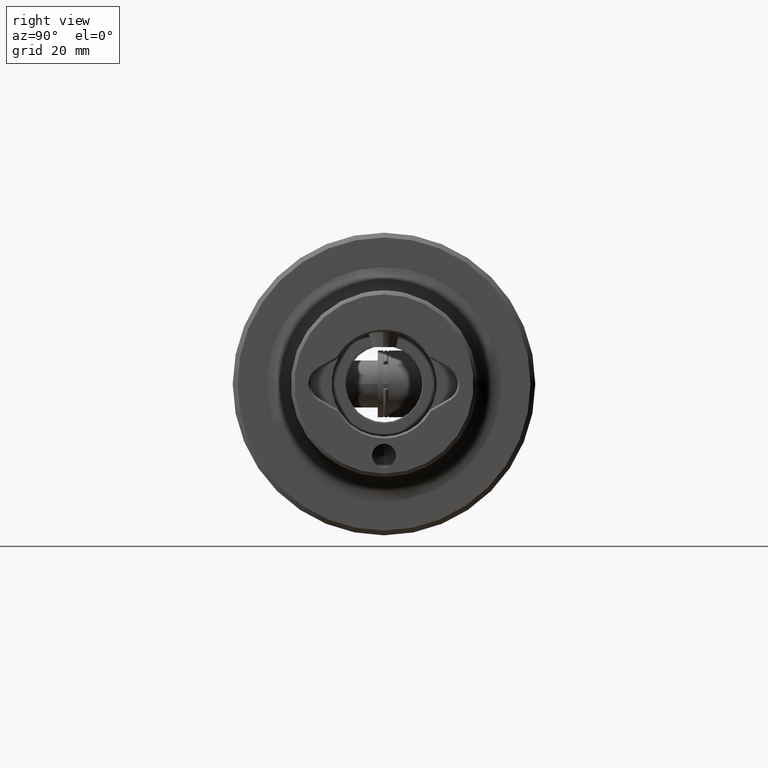
[diagram: clean part render]
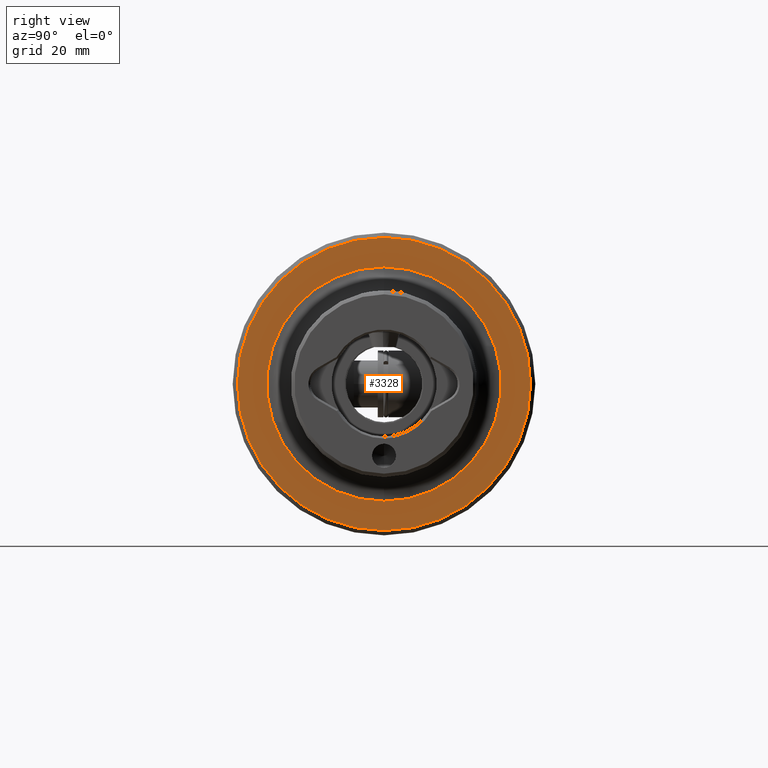
[diagram: same view with one face highlighted and labeled with its STEP entity id]
A machine part, right view. The second image highlights one B-rep face of the part: STEP entity #3328.
In plain terms, the highlighted planar face has unit normal (-1, 0, 0).
Its self-contained STEP definition (entity closure, byte-faithful):
#12 = CIRCLE ( 'NONE', #2469, 30.63500000000000200 ) ;
#118 = DIRECTION ( 'NONE',  ( 0.0000000000000000000, 0.0000000000000000000, 1.000000000000000000 ) ) ;
#158 = CARTESIAN_POINT ( 'NONE',  ( 52.00000000000000700, 3.000384657911015500E-015, -24.50000000000000000 ) ) ;
#193 = DIRECTION ( 'NONE',  ( 0.0000000000000000000, 0.0000000000000000000, 1.000000000000000000 ) ) ;
#304 = EDGE_LOOP ( 'NONE', ( #628, #2915 ) ) ;
#317 = PLANE ( 'NONE',  #3670 ) ;
#386 = AXIS2_PLACEMENT_3D ( 'NONE', #5094, #2635, #193 ) ;
#504 = ORIENTED_EDGE ( 'NONE', *, *, #2127, .T. ) ;
#544 = ORIENTED_EDGE ( 'NONE', *, *, #2341, .T. ) ;
#628 = ORIENTED_EDGE ( 'NONE', *, *, #3543, .T. ) ;
#858 = CARTESIAN_POINT ( 'NONE',  ( 52.00000000000000700, 0.0000000000000000000, 0.0000000000000000000 ) ) ;
#1260 = DIRECTION ( 'NONE',  ( 0.0000000000000000000, 0.0000000000000000000, 1.000000000000000000 ) ) ;
#1381 = CARTESIAN_POINT ( 'NONE',  ( 52.00000000000000700, 0.0000000000000000000, 0.0000000000000000000 ) ) ;
#1545 = CARTESIAN_POINT ( 'NONE',  ( 52.00000000000000700, 31.63500000000000500, 0.0000000000000000000 ) ) ;
#1727 = FACE_BOUND ( 'NONE', #2852, .T. ) ;
#1782 = DIRECTION ( 'NONE',  ( 0.0000000000000000000, 0.0000000000000000000, 1.000000000000000000 ) ) ;
#2015 = VERTEX_POINT ( 'NONE', #3285 ) ;
#2127 = EDGE_CURVE ( 'NONE', #3059, #2219, #4745, .T. ) ;
#2219 = VERTEX_POINT ( 'NONE', #5242 ) ;
#2341 = EDGE_CURVE ( 'NONE', #2219, #3059, #3160, .T. ) ;
#2372 = DIRECTION ( 'NONE',  ( -0.0000000000000000000, 0.0000000000000000000, 1.000000000000000000 ) ) ;
#2469 = AXIS2_PLACEMENT_3D ( 'NONE', #5011, #2551, #118 ) ;
#2551 = DIRECTION ( 'NONE',  ( 1.000000000000000000, 0.0000000000000000000, 0.0000000000000000000 ) ) ;
#2635 = DIRECTION ( 'NONE',  ( 1.000000000000000000, 0.0000000000000000000, 0.0000000000000000000 ) ) ;
#2852 = EDGE_LOOP ( 'NONE', ( #544, #504 ) ) ;
#2915 = ORIENTED_EDGE ( 'NONE', *, *, #3135, .T. ) ;
#3059 = VERTEX_POINT ( 'NONE', #158 ) ;
#3135 = EDGE_CURVE ( 'NONE', #5030, #2015, #4670, .T. ) ;
#3160 = CIRCLE ( 'NONE', #3165, 24.50000000000000000 ) ;
#3165 = AXIS2_PLACEMENT_3D ( 'NONE', #858, #3709, #1260 ) ;
#3202 = CARTESIAN_POINT ( 'NONE',  ( 52.00000000000000700, 3.812937809145284600E-015, -30.63500000000000200 ) ) ;
#3285 = CARTESIAN_POINT ( 'NONE',  ( 52.00000000000000700, 0.0000000000000000000, 30.63500000000000200 ) ) ;
#3328 = ADVANCED_FACE ( 'NONE', ( #3912, #1727 ), #317, .F. ) ;
#3543 = EDGE_CURVE ( 'NONE', #2015, #5030, #12, .T. ) ;
#3670 = AXIS2_PLACEMENT_3D ( 'NONE', #1545, #4812, #2372 ) ;
#3709 = DIRECTION ( 'NONE',  ( -1.000000000000000000, -0.0000000000000000000, -0.0000000000000000000 ) ) ;
#3912 = FACE_OUTER_BOUND ( 'NONE', #304, .T. ) ;
#4238 = DIRECTION ( 'NONE',  ( -1.000000000000000000, -0.0000000000000000000, -0.0000000000000000000 ) ) ;
#4670 = CIRCLE ( 'NONE', #386, 30.63500000000000200 ) ;
#4745 = CIRCLE ( 'NONE', #4899, 24.50000000000000000 ) ;
#4812 = DIRECTION ( 'NONE',  ( -1.000000000000000000, 0.0000000000000000000, -0.0000000000000000000 ) ) ;
#4899 = AXIS2_PLACEMENT_3D ( 'NONE', #1381, #4238, #1782 ) ;
#5011 = CARTESIAN_POINT ( 'NONE',  ( 52.00000000000000700, 0.0000000000000000000, 0.0000000000000000000 ) ) ;
#5030 = VERTEX_POINT ( 'NONE', #3202 ) ;
#5094 = CARTESIAN_POINT ( 'NONE',  ( 52.00000000000000700, 0.0000000000000000000, 0.0000000000000000000 ) ) ;
#5242 = CARTESIAN_POINT ( 'NONE',  ( 52.00000000000000700, 0.0000000000000000000, 24.50000000000000000 ) ) ;